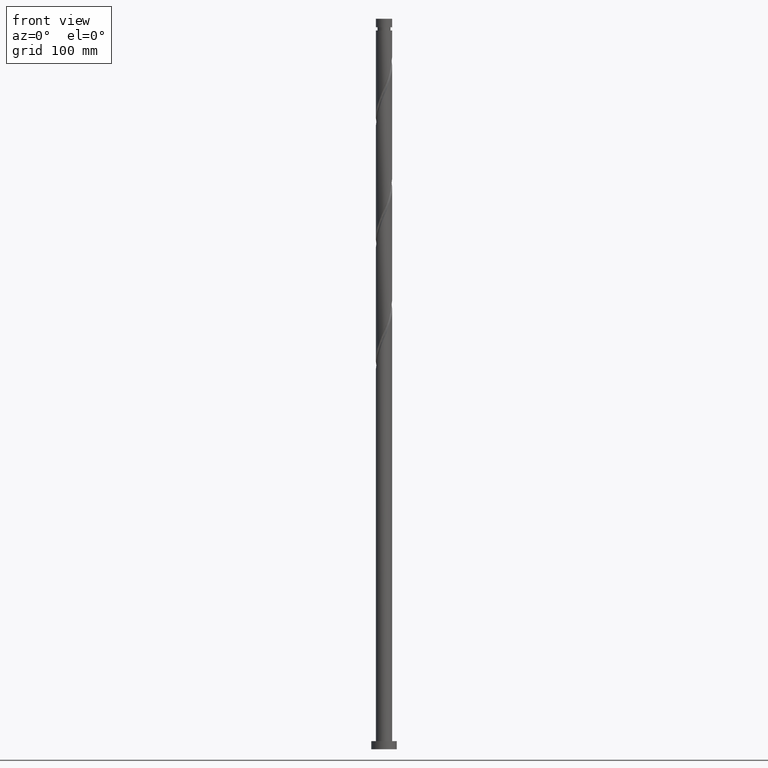
[diagram: clean part render]
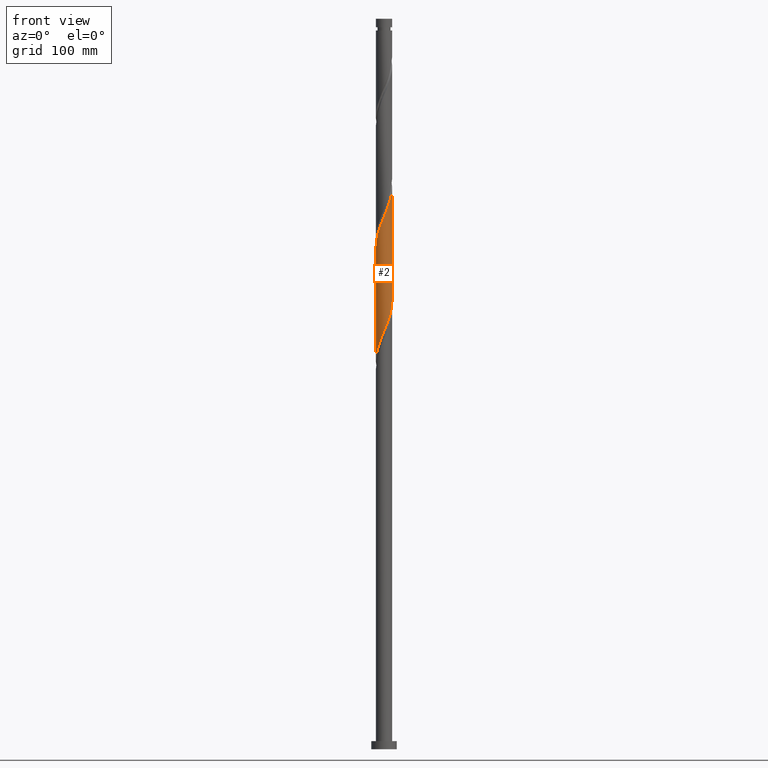
[diagram: same view with one face highlighted and labeled with its STEP entity id]
A machine part, front view. The second image highlights one B-rep face of the part: STEP entity #2.
In plain terms, the highlighted cylindrical surface (edge-blend (fillet) strip) has radius 7 mm, axis along (-0, -0, -1).
Its self-contained STEP definition (entity closure, byte-faithful):
#2 = ADVANCED_FACE ( 'NONE', ( #810 ), #1484, .T. ) ;
#12 = CARTESIAN_POINT ( 'NONE',  ( -5.519914488767829752, -4.304711841307283571, 443.8228041643683923 ) ) ;
#23 = CARTESIAN_POINT ( 'NONE',  ( 5.650978539377444321, -4.131154989527225929, 474.7051571055448562 ) ) ;
#36 = CARTESIAN_POINT ( 'NONE',  ( 6.313857628450199933, -3.022449643527802987, 477.7933923996625367 ) ) ;
#55 = ORIENTED_EDGE ( 'NONE', *, *, #360, .F. ) ;
#84 = CARTESIAN_POINT ( 'NONE',  ( -4.323153652638915823, -5.543562348443766830, 349.6316276937802741 ) ) ;
#93 = CARTESIAN_POINT ( 'NONE',  ( 2.426987120929419373, -6.565800295077725224, 366.6169218114273463 ) ) ;
#105 = CARTESIAN_POINT ( 'NONE',  ( 1.179200414852472845, -6.899962781175836390, 363.5286865173095521 ) ) ;
#149 = CARTESIAN_POINT ( 'NONE',  ( -7.000000000000002665, 6.453537163524918519E-15, 334.4504247037682489 ) ) ;
#156 = LINE ( 'NONE', #1706, #1856 ) ;
#158 = EDGE_LOOP ( 'NONE', ( #55, #2155, #1310, #309 ) ) ;
#170 = CARTESIAN_POINT ( 'NONE',  ( 3.777035245235271788, -5.893556206251933105, 468.5286865173096089 ) ) ;
#180 = CARTESIAN_POINT ( 'NONE',  ( -1.818576125090525242, -6.790693771085499542, 454.6316276937801604 ) ) ;
#189 = CARTESIAN_POINT ( 'NONE',  ( 0.1087425470572634945, -6.999155310354216120, 459.2639806349565674 ) ) ;
#241 = CARTESIAN_POINT ( 'NONE',  ( -3.777035245235266459, -5.893556206251926000, 351.1757453408388869 ) ) ;
#253 = CARTESIAN_POINT ( 'NONE',  ( 6.889388918561528463, -1.398950086389862291, 383.6022159290743616 ) ) ;
#264 = DIRECTION ( 'NONE',  ( -0.000000000000000000, -0.000000000000000000, -1.000000000000000000 ) ) ;
#270 = CARTESIAN_POINT ( 'NONE',  ( 1.818576125090520801, -6.790693771085493324, 365.0728041643683923 ) ) ;
#309 = ORIENTED_EDGE ( 'NONE', *, *, #859, .F. ) ;
#314 = CARTESIAN_POINT ( 'NONE',  ( -7.000000000000010658, -6.095007321106839004E-15, 432.7540071543803037 ) ) ;
#349 = CARTESIAN_POINT ( 'NONE',  ( -6.216916180193686969, -3.217134316196028632, 440.7345688702508824 ) ) ;
#360 = EDGE_CURVE ( 'NONE', #406, #1730, #517, .T. ) ;
#361 = CARTESIAN_POINT ( 'NONE',  ( 1.392982411949275079, -6.860000000000008313, 462.3522159290743616 ) ) ;
#392 = CARTESIAN_POINT ( 'NONE',  ( -7.000000000000002665, 6.453537163524918519E-15, 334.4504247037682489 ) ) ;
#406 = VERTEX_POINT ( 'NONE', #1002 ) ;
#411 = CARTESIAN_POINT ( 'NONE',  ( -1.392982411949276189, -6.860000000000002096, 357.3522159290743048 ) ) ;
#423 = CARTESIAN_POINT ( 'NONE',  ( 3.035398116768314392, -6.340906819069961564, 368.1610394584861297 ) ) ;
#436 = CARTESIAN_POINT ( 'NONE',  ( 4.148853266138338824, -5.675187890410485103, 371.2492747526036965 ) ) ;
#449 = CARTESIAN_POINT ( 'NONE',  ( 6.999999999999998224, -0.3781398857548755599, 386.0465054717554949 ) ) ;
#466 = CARTESIAN_POINT ( 'NONE',  ( 0.000000000000000000, 0.000000000000000000, 630.0000000000000000 ) ) ;
#517 = LINE ( 'NONE', #2031, #1398 ) ;
#525 = CARTESIAN_POINT ( 'NONE',  ( -6.702208247472152713, -2.020001140474035228, 437.6463335761332019 ) ) ;
#532 = EDGE_CURVE ( 'NONE', #1381, #406, #1570, .T. ) ;
#535 = CARTESIAN_POINT ( 'NONE',  ( 0.7573097987289522104, -6.989078829442246565, 460.8080982820154077 ) ) ;
#595 = CARTESIAN_POINT ( 'NONE',  ( 5.519914488767822647, -4.304711841307277354, 375.8816276937802172 ) ) ;
#608 = CARTESIAN_POINT ( 'NONE',  ( 5.121024193531048319, -4.816207244780717822, 374.3375100467213770 ) ) ;
#617 = CARTESIAN_POINT ( 'NONE',  ( 3.592125691453326830, -6.008047354740224222, 369.7051571055449131 ) ) ;
#624 = VERTEX_POINT ( 'NONE', #392 ) ;
#683 = DIRECTION ( 'NONE',  ( -0.000000000000000000, -0.000000000000000000, -1.000000000000000000 ) ) ;
#704 = CARTESIAN_POINT ( 'NONE',  ( 6.761725868623641666, -1.810818399946827251, 480.8816276937802172 ) ) ;
#712 = CARTESIAN_POINT ( 'NONE',  ( 4.795662153747907830, -5.099178807132584978, 471.6169218114271757 ) ) ;
#732 = CARTESIAN_POINT ( 'NONE',  ( 5.268170654856896284, -4.654795265821401351, 473.1610394584860728 ) ) ;
#755 = CARTESIAN_POINT ( 'NONE',  ( -4.795662153747901613, -5.099178807132581426, 348.0875100467213201 ) ) ;
#765 = CARTESIAN_POINT ( 'NONE',  ( -2.028655025169598947, -6.730921170557767397, 355.8080982820154077 ) ) ;
#810 = FACE_OUTER_BOUND ( 'NONE', #158, .T. ) ;
#820 = CARTESIAN_POINT ( 'NONE',  ( -6.761725868623634561, -1.810818399946825474, 338.8228041643683923 ) ) ;
#832 = CARTESIAN_POINT ( 'NONE',  ( -6.593928833002403067, -2.437384573822550582, 340.3669218114272326 ) ) ;
#849 = CARTESIAN_POINT ( 'NONE',  ( -7.000000000000007994, -0.3781398857548599057, 433.6579263863928304 ) ) ;
#858 = CARTESIAN_POINT ( 'NONE',  ( 6.929522904244873160, -1.184252226071106584, 482.4257453408391143 ) ) ;
#859 = EDGE_CURVE ( 'NONE', #1730, #624, #1401, .T. ) ;
#869 = CARTESIAN_POINT ( 'NONE',  ( -3.592125691453332603, -6.008047354740226886, 449.9992747526037533 ) ) ;
#891 = CARTESIAN_POINT ( 'NONE',  ( 7.000000000000010658, 6.602924597865741925E-15, 485.2540071543802469 ) ) ;
#901 = CARTESIAN_POINT ( 'NONE',  ( -6.515027576382769858, -2.641052194558210164, 439.1904512231919853 ) ) ;
#936 = CARTESIAN_POINT ( 'NONE',  ( 0.5398247046144222239, -7.009231791266180345, 361.9845688702506550 ) ) ;
#948 = CARTESIAN_POINT ( 'NONE',  ( -3.230916837831621091, -6.243550064060084281, 352.7198629878978409 ) ) ;
#995 = EDGE_CURVE ( 'NONE', #1381, #624, #156, .T. ) ;
#1002 = CARTESIAN_POINT ( 'NONE',  ( 7.000000000000010658, 6.602924597865742714E-15, 485.2540071543802469 ) ) ;
#1026 = CARTESIAN_POINT ( 'NONE',  ( -5.121024193531053648, -4.816207244780721375, 445.3669218114272894 ) ) ;
#1035 = CARTESIAN_POINT ( 'NONE',  ( 4.323153652638920263, -5.543562348443774823, 470.0728041643683355 ) ) ;
#1039 = AXIS2_PLACEMENT_3D ( 'NONE', #466, #264, #1119 ) ;
#1045 = CARTESIAN_POINT ( 'NONE',  ( -2.426987120929422481, -6.565800295077733217, 453.0875100467213770 ) ) ;
#1057 = CARTESIAN_POINT ( 'NONE',  ( -0.5398247046144251104, -7.009231791266188338, 457.7198629878978977 ) ) ;
#1101 = CARTESIAN_POINT ( 'NONE',  ( 6.959264651295729465, -0.7540792486375333947, 385.1463335761330313 ) ) ;
#1112 = CARTESIAN_POINT ( 'NONE',  ( -0.1087425470572657982, -6.999155310354209902, 360.4404512231919284 ) ) ;
#1119 = DIRECTION ( 'NONE',  ( -1.000000000000000000, 0.000000000000000000, 0.000000000000000000 ) ) ;
#1167 = CARTESIAN_POINT ( 'NONE',  ( -7.000000000000003553, -0.2691583152137644874, 335.0938304558279128 ) ) ;
#1224 = CARTESIAN_POINT ( 'NONE',  ( -6.889388918561536457, -1.398950086389860736, 436.1022159290744185 ) ) ;
#1237 = CARTESIAN_POINT ( 'NONE',  ( 2.629785931500610019, -6.487235617308932056, 465.4404512231919853 ) ) ;
#1272 = CARTESIAN_POINT ( 'NONE',  ( -6.033786423897987916, -3.607514713233048287, 343.4551571055447994 ) ) ;
#1284 = CARTESIAN_POINT ( 'NONE',  ( -2.629785931500610019, -6.487235617308924951, 354.2639806349566811 ) ) ;
#1295 = CARTESIAN_POINT ( 'NONE',  ( -0.7573097987289505451, -6.989078829442237684, 358.8963335761331450 ) ) ;
#1310 = ORIENTED_EDGE ( 'NONE', *, *, #995, .T. ) ;
#1343 = CARTESIAN_POINT ( 'NONE',  ( -6.979331644137400481, -0.5375219075929524859, 335.7345688702507118 ) ) ;
#1381 = VERTEX_POINT ( 'NONE', #1597 ) ;
#1394 = CARTESIAN_POINT ( 'NONE',  ( 7.000000000000011546, -0.2691583152137603241, 484.6106014023205262 ) ) ;
#1398 = VECTOR ( 'NONE', #683, 1000.000000000000000 ) ;
#1401 =( BOUNDED_CURVE ( )  B_SPLINE_CURVE ( 2, ( #2120, #449, #1101, #253, #1769, #2132, #1956, #1634, #595, #608, #1610, #436, #617, #423, #93, #270, #105, #936, #1112, #1295, #411, #765, #1284, #948, #241, #84, #755, #1445, #2110, #1272, #1946, #832, #820, #1679, #1343, #1167, #149 ),
 .UNSPECIFIED., .F., .T. ) 
 B_SPLINE_CURVE_WITH_KNOTS ( ( 3, 2, 2, 2, 2, 2, 2, 2, 2, 2, 2, 2, 2, 2, 2, 2, 2, 2, 3 ),
 ( 0.8045293573162907164, 0.8088235294117647189, 0.8161764705882352811, 0.8235294117647058432, 0.8308823529411765163, 0.8382352941176470784, 0.8455882352941176405, 0.8529411764705882026, 0.8602941176470588758, 0.8676470588235294379, 0.8750000000000000000, 0.8823529411764705621, 0.8897058823529411242, 0.8970588235294117974, 0.9044117647058823595, 0.9117647058823529216, 0.9191176470588234837, 0.9264705882352941568, 0.9295293573162906053 ),
 .UNSPECIFIED. ) 
 CURVE ( )  GEOMETRIC_REPRESENTATION_ITEM ( )  RATIONAL_B_SPLINE_CURVE ( ( 0.9072066346053073715, 0.9068261157890745716, 0.9090909090909458090, 0.9052128875409768405, 0.9090909090909458090, 0.9052128875409768405, 0.9090909090909458090, 0.9052128875409768405, 0.9090909090909458090, 0.9052128875409768405, 0.9090909090909458090, 0.9052128875409768405, 0.9090909090909458090, 0.9052128875409768405, 0.9090909090909458090, 0.9052128875409768405, 0.9090909090909458090, 0.9052128875409768405, 0.9090909090909458090, 0.9052128875409768405, 0.9090909090909458090, 0.9052128875409768405, 0.9090909090909458090, 0.9052128875409768405, 0.9090909090909458090, 0.9052128875409768405, 0.9090909090909458090, 0.9052128875409768405, 0.9090909090909458090, 0.9052128875409768405, 0.9090909090909458090, 0.9052128875409768405, 0.9090909090909458090, 0.9052128875409768405, 0.9090909090909458090, 0.9074776808428479669, 0.9072066346053073715 ) ) 
 REPRESENTATION_ITEM ( '' )  );
#1445 = CARTESIAN_POINT ( 'NONE',  ( -5.268170654856891844, -4.654795265821396910, 346.5433923996625367 ) ) ;
#1484 = CYLINDRICAL_SURFACE ( 'NONE', #1039, 7.000000000000000888 ) ;
#1541 = CARTESIAN_POINT ( 'NONE',  ( 6.033786423897991469, -3.607514713233052728, 476.2492747526037533 ) ) ;
#1550 = CARTESIAN_POINT ( 'NONE',  ( 3.230916837831621979, -6.243550064060094940, 466.9845688702508824 ) ) ;
#1562 = CARTESIAN_POINT ( 'NONE',  ( -3.035398116768320609, -6.340906819069967781, 451.5433923996625367 ) ) ;
#1570 =( BOUNDED_CURVE ( )  B_SPLINE_CURVE ( 2, ( #314, #849, #1848, #1224, #525, #901, #349, #1880, #12, #1026, #1702, #1734, #869, #1562, #1045, #180, #1723, #1057, #189, #535, #361, #1901, #1237, #1550, #170, #1035, #712, #732, #23, #1541, #36, #1573, #704, #858, #2048, #1394, #891 ),
 .UNSPECIFIED., .F., .T. ) 
 B_SPLINE_CURVE_WITH_KNOTS ( ( 3, 2, 2, 2, 2, 2, 2, 2, 2, 2, 2, 2, 2, 2, 2, 2, 2, 2, 3 ),
 ( 0.3045293573162905498, 0.3088235294117647189, 0.3161764705882352811, 0.3235294117647058432, 0.3308823529411765163, 0.3382352941176470784, 0.3455882352941176405, 0.3529411764705882026, 0.3602941176470588758, 0.3676470588235294379, 0.3750000000000000000, 0.3823529411764705621, 0.3897058823529411242, 0.3970588235294117974, 0.4044117647058823595, 0.4117647058823529216, 0.4191176470588234837, 0.4264705882352941568, 0.4295293573162906609 ),
 .UNSPECIFIED. ) 
 CURVE ( )  GEOMETRIC_REPRESENTATION_ITEM ( )  RATIONAL_B_SPLINE_CURVE ( ( 0.9072066346053118124, 0.9068261157890789015, 0.9090909090909501389, 0.9052128875409812814, 0.9090909090909501389, 0.9052128875409812814, 0.9090909090909501389, 0.9052128875409812814, 0.9090909090909501389, 0.9052128875409812814, 0.9090909090909501389, 0.9052128875409812814, 0.9090909090909501389, 0.9052128875409812814, 0.9090909090909501389, 0.9052128875409812814, 0.9090909090909501389, 0.9052128875409812814, 0.9090909090909501389, 0.9052128875409812814, 0.9090909090909501389, 0.9052128875409812814, 0.9090909090909501389, 0.9052128875409812814, 0.9090909090909501389, 0.9052128875409812814, 0.9090909090909501389, 0.9052128875409812814, 0.9090909090909501389, 0.9052128875409812814, 0.9090909090909501389, 0.9052128875409812814, 0.9090909090909501389, 0.9052128875409812814, 0.9090909090909501389, 0.9074776808428524077, 0.9072066346053115904 ) ) 
 REPRESENTATION_ITEM ( '' )  );
#1573 = CARTESIAN_POINT ( 'NONE',  ( 6.593928833002410173, -2.437384573822554579, 479.3375100467214907 ) ) ;
#1597 = CARTESIAN_POINT ( 'NONE',  ( -7.000000000000010658, -6.095007321106839004E-15, 432.7540071543803037 ) ) ;
#1610 = CARTESIAN_POINT ( 'NONE',  ( 4.634938729834693127, -5.245697567595601463, 372.7933923996624230 ) ) ;
#1634 = CARTESIAN_POINT ( 'NONE',  ( 5.918804784004598751, -3.793216437833843102, 377.4257453408390006 ) ) ;
#1679 = CARTESIAN_POINT ( 'NONE',  ( -6.929522904244866943, -1.184252226071104364, 337.2786865173096089 ) ) ;
#1697 = DIRECTION ( 'NONE',  ( -0.000000000000000000, -0.000000000000000000, -1.000000000000000000 ) ) ;
#1702 = CARTESIAN_POINT ( 'NONE',  ( -4.634938729834698457, -5.245697567595605015, 446.9110394584860160 ) ) ;
#1706 = CARTESIAN_POINT ( 'NONE',  ( -7.000000000000000888, 0.000000000000000000, 630.0000000000000000 ) ) ;
#1723 = CARTESIAN_POINT ( 'NONE',  ( -1.179200414852473733, -6.899962781175843496, 456.1757453408389438 ) ) ;
#1730 = VERTEX_POINT ( 'NONE', #1973 ) ;
#1734 = CARTESIAN_POINT ( 'NONE',  ( -4.148853266138343265, -5.675187890410491320, 448.4551571055448562 ) ) ;
#1769 = CARTESIAN_POINT ( 'NONE',  ( 6.702208247472145608, -2.020001140474033452, 382.0580982820153508 ) ) ;
#1848 = CARTESIAN_POINT ( 'NONE',  ( -6.959264651295736570, -0.7540792486375301751, 434.5580982820154645 ) ) ;
#1856 = VECTOR ( 'NONE', #1697, 1000.000000000000000 ) ;
#1880 = CARTESIAN_POINT ( 'NONE',  ( -5.918804784004604969, -3.793216437833846211, 442.2786865173096658 ) ) ;
#1901 = CARTESIAN_POINT ( 'NONE',  ( 2.028655025169602499, -6.730921170557770949, 463.8963335761332019 ) ) ;
#1946 = CARTESIAN_POINT ( 'NONE',  ( -6.313857628450196380, -3.022449643527797214, 341.9110394584861297 ) ) ;
#1956 = CARTESIAN_POINT ( 'NONE',  ( 6.216916180193678088, -3.217134316196027743, 378.9698629878977840 ) ) ;
#1973 = CARTESIAN_POINT ( 'NONE',  ( 7.000000000000000888, -6.752312032206627651E-15, 386.9504247037682489 ) ) ;
#2031 = CARTESIAN_POINT ( 'NONE',  ( 7.000000000000000888, 8.572527594031474176E-16, 630.0000000000000000 ) ) ;
#2048 = CARTESIAN_POINT ( 'NONE',  ( 6.979331644137407586, -0.5375219075929553725, 483.9698629878978409 ) ) ;
#2110 = CARTESIAN_POINT ( 'NONE',  ( -5.650978539377440768, -4.131154989527220600, 344.9992747526036965 ) ) ;
#2120 = CARTESIAN_POINT ( 'NONE',  ( 7.000000000000000888, -6.752312032206627651E-15, 386.9504247037682489 ) ) ;
#2132 = CARTESIAN_POINT ( 'NONE',  ( 6.515027576382764529, -2.641052194558206168, 380.5139806349566811 ) ) ;
#2155 = ORIENTED_EDGE ( 'NONE', *, *, #532, .F. ) ;